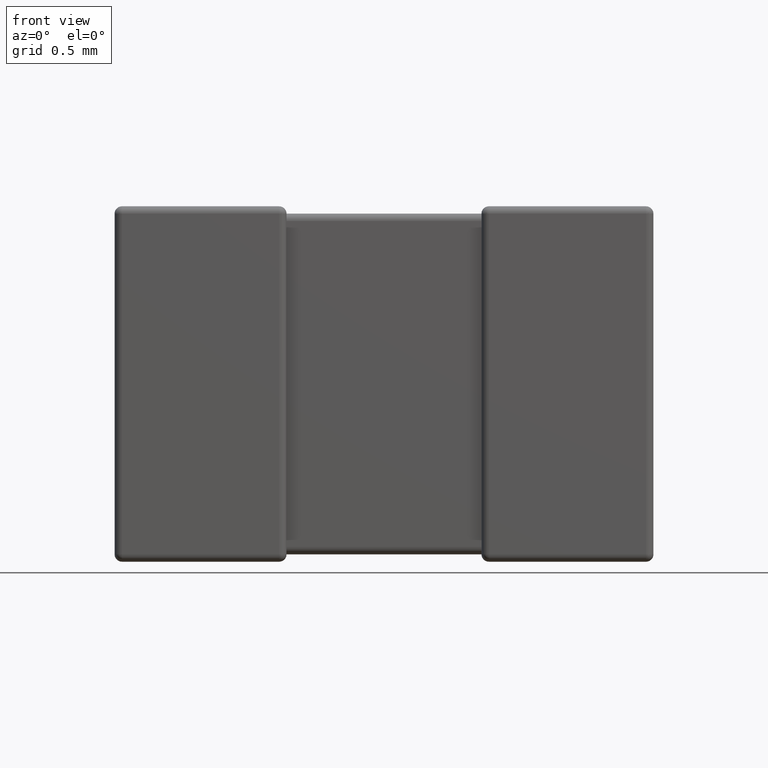
[diagram: clean part render]
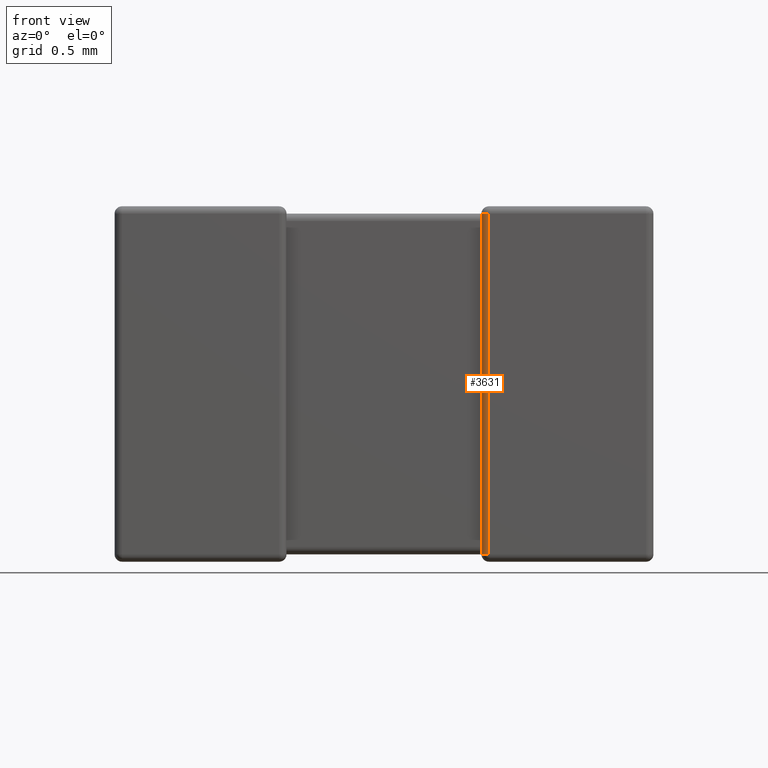
[diagram: same view with one face highlighted and labeled with its STEP entity id]
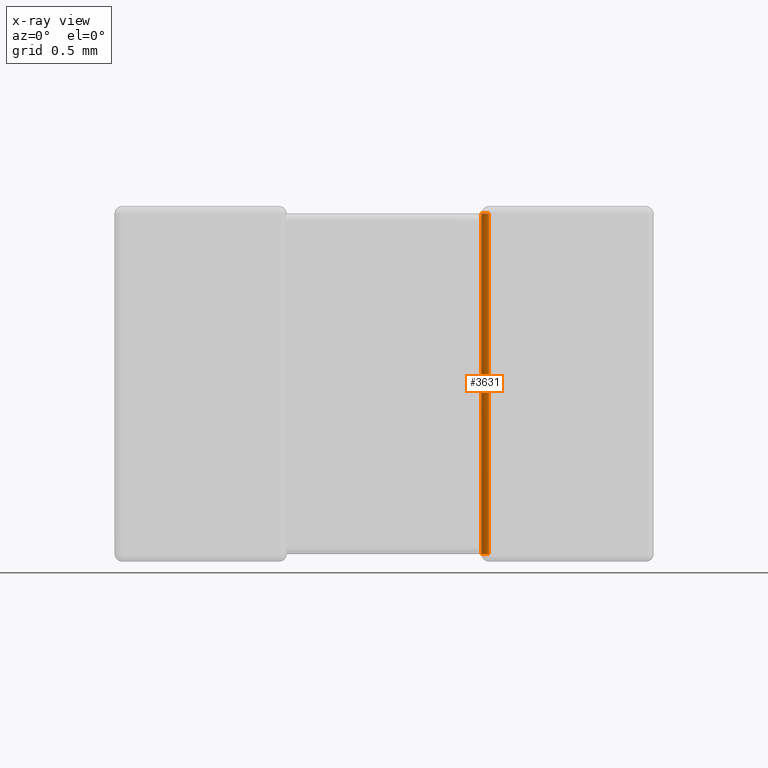
[diagram: x-ray of the same camera — body ghosted, the highlighted face saturated]
A machine part, front view. The second image highlights one B-rep face of the part: STEP entity #3631.
The next image is the same camera in x-ray: the body ghosted, the highlighted face saturated — about 0% of this face is hidden behind the body in this view.
In plain terms, the highlighted cylindrical surface (edge-blend (fillet) strip) has radius 0.0322 mm, axis along (0, 0, -1).
Its self-contained STEP definition (entity closure, byte-faithful):
#46 = CARTESIAN_POINT ( 'NONE',  ( 1.632240000000000135, 0.000000000000000000, 0.000000000000000000 ) ) ;
#47 = CARTESIAN_POINT ( 'NONE',  ( 1.600000000000000089, 0.03224000000000000477, -0.03224000000000000477 ) ) ;
#98 = DIRECTION ( 'NONE',  ( 0.000000000000000000, -1.000000000000000000, 2.101818727678164813E-16 ) ) ;
#167 = CARTESIAN_POINT ( 'NONE',  ( 1.632240000000000135, 0.03223999999999999089, 0.000000000000000000 ) ) ;
#324 = ORIENTED_EDGE ( 'NONE', *, *, #2117, .T. ) ;
#330 = DIRECTION ( 'NONE',  ( -0.000000000000000000, 0.000000000000000000, 1.000000000000000000 ) ) ;
#390 = DIRECTION ( 'NONE',  ( 0.000000000000000000, 0.000000000000000000, -1.000000000000000000 ) ) ;
#537 = EDGE_CURVE ( 'NONE', #3849, #1338, #1287, .T. ) ;
#569 = CIRCLE ( 'NONE', #3221, 0.03224000000000000477 ) ;
#619 = ORIENTED_EDGE ( 'NONE', *, *, #786, .T. ) ;
#694 = EDGE_CURVE ( 'NONE', #2439, #3647, #3919, .T. ) ;
#727 = CYLINDRICAL_SURFACE ( 'NONE', #4655, 0.03224000000000000477 ) ;
#749 = CARTESIAN_POINT ( 'NONE',  ( 1.600000000000000089, 0.03224000000000000477, -1.485519999999999952 ) ) ;
#774 = CARTESIAN_POINT ( 'NONE',  ( 1.600000000000000089, 0.03223999999999999089, 0.000000000000000000 ) ) ;
#786 = EDGE_CURVE ( 'NONE', #2439, #1690, #3532, .T. ) ;
#852 = CARTESIAN_POINT ( 'NONE',  ( 1.632240000000000135, 0.000000000000000000, -1.517759999999999998 ) ) ;
#1060 = DIRECTION ( 'NONE',  ( 0.000000000000000000, 0.000000000000000000, -1.000000000000000000 ) ) ;
#1086 = LINE ( 'NONE', #4625, #1128 ) ;
#1128 = VECTOR ( 'NONE', #390, 1000.000000000000000 ) ;
#1144 = DIRECTION ( 'NONE',  ( 0.000000000000000000, 0.000000000000000000, -1.000000000000000000 ) ) ;
#1287 = LINE ( 'NONE', #2763, #3089 ) ;
#1338 = VERTEX_POINT ( 'NONE', #2075 ) ;
#1690 = VERTEX_POINT ( 'NONE', #47 ) ;
#1969 = ORIENTED_EDGE ( 'NONE', *, *, #4047, .T. ) ;
#2075 = CARTESIAN_POINT ( 'NONE',  ( 1.600000000000000089, 0.03224000000000000477, -0.06448000000000000953 ) ) ;
#2109 = FACE_OUTER_BOUND ( 'NONE', #2388, .T. ) ;
#2117 = EDGE_CURVE ( 'NONE', #1690, #1338, #1086, .T. ) ;
#2176 = CARTESIAN_POINT ( 'NONE',  ( 1.632240000000000135, 0.03223999999999999783, -1.517759999999999998 ) ) ;
#2388 = EDGE_LOOP ( 'NONE', ( #619, #324, #3316, #1969, #2686, #4548 ) ) ;
#2439 = VERTEX_POINT ( 'NONE', #3246 ) ;
#2568 = VECTOR ( 'NONE', #1060, 1000.000000000000000 ) ;
#2656 = DIRECTION ( 'NONE',  ( -0.000000000000000000, -2.101818727678165306E-16, -1.000000000000000000 ) ) ;
#2678 = DIRECTION ( 'NONE',  ( 0.000000000000000000, 0.000000000000000000, -1.000000000000000000 ) ) ;
#2686 = ORIENTED_EDGE ( 'NONE', *, *, #3617, .T. ) ;
#2763 = CARTESIAN_POINT ( 'NONE',  ( 1.600000000000000089, 0.03224000000000000477, -1.550000000000000044 ) ) ;
#2865 = AXIS2_PLACEMENT_3D ( 'NONE', #3683, #2656, #98 ) ;
#2893 = DIRECTION ( 'NONE',  ( -1.000000000000000000, 0.000000000000000000, 0.000000000000000000 ) ) ;
#3000 = LINE ( 'NONE', #774, #4500 ) ;
#3050 = DIRECTION ( 'NONE',  ( -1.000000000000000000, 0.000000000000000000, 0.000000000000000000 ) ) ;
#3089 = VECTOR ( 'NONE', #3489, 1000.000000000000000 ) ;
#3221 = AXIS2_PLACEMENT_3D ( 'NONE', #2176, #330, #2893 ) ;
#3246 = CARTESIAN_POINT ( 'NONE',  ( 1.632240000000000135, 0.000000000000000000, -0.03223999999999999783 ) ) ;
#3316 = ORIENTED_EDGE ( 'NONE', *, *, #537, .F. ) ;
#3489 = DIRECTION ( 'NONE',  ( -0.000000000000000000, -0.000000000000000000, 1.000000000000000000 ) ) ;
#3532 = CIRCLE ( 'NONE', #2865, 0.03223999999999999783 ) ;
#3542 = CARTESIAN_POINT ( 'NONE',  ( 1.600000000000000089, 0.03224000000000000477, -1.517759999999999998 ) ) ;
#3614 = VERTEX_POINT ( 'NONE', #3542 ) ;
#3617 = EDGE_CURVE ( 'NONE', #3614, #3647, #569, .T. ) ;
#3631 = ADVANCED_FACE ( 'NONE', ( #2109 ), #727, .T. ) ;
#3647 = VERTEX_POINT ( 'NONE', #852 ) ;
#3683 = CARTESIAN_POINT ( 'NONE',  ( 1.632240000000000135, 0.03223999999999999089, -0.03224000000000000477 ) ) ;
#3849 = VERTEX_POINT ( 'NONE', #749 ) ;
#3919 = LINE ( 'NONE', #46, #2568 ) ;
#4047 = EDGE_CURVE ( 'NONE', #3849, #3614, #3000, .T. ) ;
#4500 = VECTOR ( 'NONE', #1144, 1000.000000000000000 ) ;
#4548 = ORIENTED_EDGE ( 'NONE', *, *, #694, .F. ) ;
#4625 = CARTESIAN_POINT ( 'NONE',  ( 1.600000000000000089, 0.03223999999999999089, 0.000000000000000000 ) ) ;
#4655 = AXIS2_PLACEMENT_3D ( 'NONE', #167, #2678, #3050 ) ;